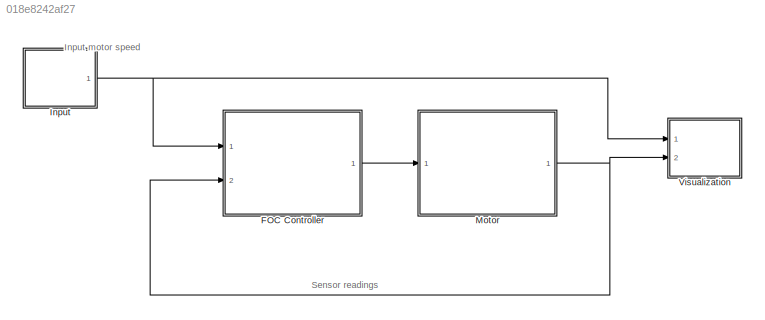
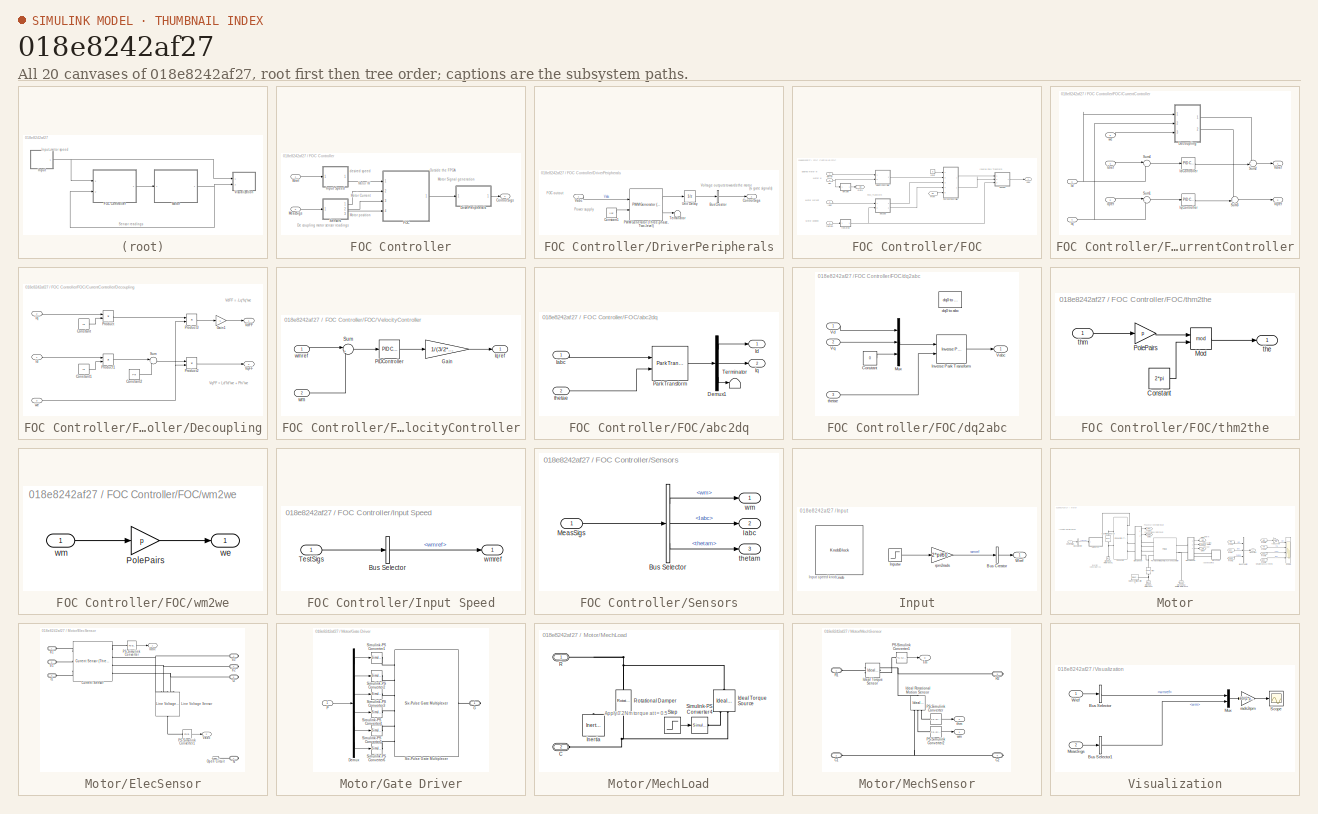
[diagram: thumbnail index - all 20 canvases of the model, root first then tree order]
MODEL slx_018e8242af27
KIND model
CONFIG AbsTol = auto
CONFIG EnableMultiTasking = off
CONFIG FixedStep = auto
CONFIG MaxStep = auto
CONFIG MinStep = auto
CONFIG RelTol = 1e-3
CONFIG SampleTimeConstraint = Unconstrained
CONFIG Solver = ode23t
CONFIG SolverName = ode23t
CONFIG StartTime = 0.0
CONFIG StopTime = 10
BLOCK [SubSystem] FOC Controller
  Ports = [2, 1]
  RequestExecContextInheritance = off
BLOCK [Outport] FOC Controller/ControlSigs
  VectorParamsAs1DForOutWhenUnconnected = off
BLOCK [SubSystem] FOC Controller/DriverPeripherals
  Ports = [1, 1]
  RequestExecContextInheritance = off
BLOCK [BusCreator] FOC Controller/DriverPeripherals/Bus Creator
  DisplayOption = bar
  InheritFromInputs = on
  Inputs = 1
  Ports = [1, 1]
BLOCK [Constant] FOC Controller/DriverPeripherals/Constant1
  Value = Vdc
BLOCK [Outport] FOC Controller/DriverPeripherals/ControlSigs
  VectorParamsAs1DForOutWhenUnconnected = off
BLOCK [Reference] FOC Controller/DriverPeripherals/PWM Generator (Three-phase, Two-level)  REF=eePwmGeneratorTwoLevel/PWM Generator
(Three-phase, Two-level)
  Ports = [2, 2]
  SourceBlock = eePwmGeneratorTwoLevel/PWM Generator\n(Three-phase, Two-level)
  SourceProductBaseCode = PS
  SourceType = PWM Generator (three-phase, two-level)
BLOCK [Terminator] FOC Controller/DriverPeripherals/Terminator
BLOCK [UnitDelay] FOC Controller/DriverPeripherals/Unit Delay
  HasFrameUpgradeWarning = on
  SampleTime = -1
BLOCK [Inport] FOC Controller/DriverPeripherals/Vabc
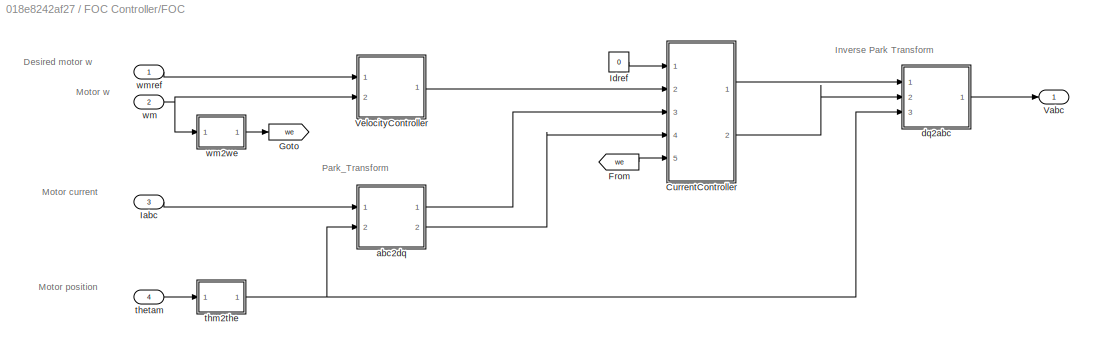
BLOCK [SubSystem] FOC Controller/FOC
  Ports = [4, 1]
  RequestExecContextInheritance = off
BLOCK [SubSystem] FOC Controller/FOC/CurrentController
  Ports = [5, 2]
  RequestExecContextInheritance = off
BLOCK [SubSystem] FOC Controller/FOC/CurrentController/Decoupling
  Ports = [3, 2]
  RequestExecContextInheritance = off
BLOCK [Constant] FOC Controller/FOC/CurrentController/Decoupling/Constant
  Value = Lq
BLOCK [Constant] FOC Controller/FOC/CurrentController/Decoupling/Constant1
  Value = Ld
BLOCK [Constant] FOC Controller/FOC/CurrentController/Decoupling/Constant2
  Value = Phi
BLOCK [Gain] FOC Controller/FOC/CurrentController/Decoupling/Gain1
  Gain = -1
BLOCK [Inport] FOC Controller/FOC/CurrentController/Decoupling/Id
BLOCK [Inport] FOC Controller/FOC/CurrentController/Decoupling/Iq
  Port = 2
BLOCK [Product] FOC Controller/FOC/CurrentController/Decoupling/Product
  Ports = [2, 1]
BLOCK [Product] FOC Controller/FOC/CurrentController/Decoupling/Product1
  Ports = [2, 1]
BLOCK [Product] FOC Controller/FOC/CurrentController/Decoupling/Product2
  Ports = [2, 1]
BLOCK [Product] FOC Controller/FOC/CurrentController/Decoupling/Product3
  Ports = [2, 1]
BLOCK [Sum] FOC Controller/FOC/CurrentController/Decoupling/Sum
  Inputs = |++
  Ports = [2, 1]
BLOCK [Outport] FOC Controller/FOC/CurrentController/Decoupling/VdFF
  VectorParamsAs1DForOutWhenUnconnected = off
BLOCK [Outport] FOC Controller/FOC/CurrentController/Decoupling/VqFF
  Port = 2
  VectorParamsAs1DForOutWhenUnconnected = off
BLOCK [Inport] FOC Controller/FOC/CurrentController/Decoupling/we
  Port = 3
BLOCK [Inport] FOC Controller/FOC/CurrentController/Id
  Port = 3
BLOCK [Reference] FOC Controller/FOC/CurrentController/IdController  REF=simulink/Continuous/PID Controller
  Ports = [1, 1]
  SourceBlock = simulink/Continuous/PID Controller
  SourceProductBaseCode = SL
  SourceType = PID 1dof
BLOCK [Inport] FOC Controller/FOC/CurrentController/Idref
BLOCK [Inport] FOC Controller/FOC/CurrentController/Iq
  Port = 4
BLOCK [Reference] FOC Controller/FOC/CurrentController/IqController  REF=simulink/Continuous/PID Controller
  Ports = [1, 1]
  SourceBlock = simulink/Continuous/PID Controller
  SourceProductBaseCode = SL
  SourceType = PID 1dof
BLOCK [Inport] FOC Controller/FOC/CurrentController/Iqref
  Port = 2
BLOCK [Sum] FOC Controller/FOC/CurrentController/Sum1
  Inputs = |+-
  Ports = [2, 1]
BLOCK [Sum] FOC Controller/FOC/CurrentController/Sum2
  Inputs = ++|
  Ports = [2, 1]
BLOCK [Sum] FOC Controller/FOC/CurrentController/Sum3
  Inputs = ++|
  Ports = [2, 1]
BLOCK [Sum] FOC Controller/FOC/CurrentController/Sum4
  Inputs = |+-
  Ports = [2, 1]
BLOCK [Outport] FOC Controller/FOC/CurrentController/Vdref
  VectorParamsAs1DForOutWhenUnconnected = off
BLOCK [Outport] FOC Controller/FOC/CurrentController/Vqref
  Port = 2
  VectorParamsAs1DForOutWhenUnconnected = off
BLOCK [Inport] FOC Controller/FOC/CurrentController/we
  Port = 5
BLOCK [From] FOC Controller/FOC/From
  GotoTag = we
BLOCK [Goto] FOC Controller/FOC/Goto
  GotoTag = we
BLOCK [Inport] FOC Controller/FOC/Iabc
  Port = 3
BLOCK [Constant] FOC Controller/FOC/Idref
  SampleTime = -1
  Value = 0
BLOCK [Outport] FOC Controller/FOC/Vabc
  VectorParamsAs1DForOutWhenUnconnected = off
BLOCK [SubSystem] FOC Controller/FOC/VelocityController
  Ports = [2, 1]
  RequestExecContextInheritance = off
BLOCK [Gain] FOC Controller/FOC/VelocityController/Gain
  Gain = 1/(3/2*p*Phi)
BLOCK [Outport] FOC Controller/FOC/VelocityController/Iqref
  VectorParamsAs1DForOutWhenUnconnected = off
BLOCK [Reference] FOC Controller/FOC/VelocityController/PIDController  REF=simulink/Continuous/PID Controller
  Ports = [1, 1]
  SourceBlock = simulink/Continuous/PID Controller
  SourceProductBaseCode = SL
  SourceType = PID 1dof
BLOCK [Sum] FOC Controller/FOC/VelocityController/Sum
  Inputs = |+-
  Ports = [2, 1]
BLOCK [Inport] FOC Controller/FOC/VelocityController/wm
  Port = 2
BLOCK [Inport] FOC Controller/FOC/VelocityController/wmref
BLOCK [SubSystem] FOC Controller/FOC/abc2dq
  Ports = [2, 2]
  RequestExecContextInheritance = off
BLOCK [Demux] FOC Controller/FOC/abc2dq/Demux1
  Outputs = 3
  Ports = [1, 3]
BLOCK [Inport] FOC Controller/FOC/abc2dq/Iabc
BLOCK [Outport] FOC Controller/FOC/abc2dq/Id
  VectorParamsAs1DForOutWhenUnconnected = off
BLOCK [Outport] FOC Controller/FOC/abc2dq/Iq
  Port = 2
  VectorParamsAs1DForOutWhenUnconnected = off
BLOCK [Reference] FOC Controller/FOC/abc2dq/Park Transform  REF=eeTransforms/Park Transform
  Ports = [2, 1]
  SourceBlock = eeTransforms/Park Transform
  SourceProductBaseCode = PS
  SourceType = Park Transform
BLOCK [Terminator] FOC Controller/FOC/abc2dq/Terminator
BLOCK [Inport] FOC Controller/FOC/abc2dq/thetae
  Port = 2
BLOCK [SubSystem] FOC Controller/FOC/dq2abc
  Ports = [3, 1]
  RequestExecContextInheritance = off
BLOCK [Constant] FOC Controller/FOC/dq2abc/Constant
  Value = 0
BLOCK [Reference] FOC Controller/FOC/dq2abc/Inverse Park Transform  REF=eeTransforms/Inverse
Park Transform
  Ports = [2, 1]
  SourceBlock = eeTransforms/Inverse\nPark Transform
  SourceProductBaseCode = PS
  SourceType = Inverse Park Transform
BLOCK [Mux] FOC Controller/FOC/dq2abc/Mux
  DisplayOption = bar
  Inputs = 3
  Ports = [3, 1]
BLOCK [Outport] FOC Controller/FOC/dq2abc/Vabc
  VectorParamsAs1DForOutWhenUnconnected = off
BLOCK [Inport] FOC Controller/FOC/dq2abc/Vd
BLOCK [Inport] FOC Controller/FOC/dq2abc/Vq
  Port = 2
BLOCK [Reference] FOC Controller/FOC/dq2abc/dq0 to abc  REF=powerlib_meascontrol/Transformations/dq0 to abc
  Commented = on
  Ports = [2, 1]
  SourceBlock = powerlib_meascontrol/Transformations/dq0 to abc
  SourceProductBaseCode = PS
  SourceType = dq0 to abc Transformation
BLOCK [Inport] FOC Controller/FOC/dq2abc/thetae
  Port = 3
BLOCK [Inport] FOC Controller/FOC/thetam
  Port = 4
BLOCK [SubSystem] FOC Controller/FOC/thm2the
  Ports = [1, 1]
  RequestExecContextInheritance = off
BLOCK [Constant] FOC Controller/FOC/thm2the/Constant
  Value = 2*pi
BLOCK [Math] FOC Controller/FOC/thm2the/Mod
  Operator = mod
  Ports = [2, 1]
  SignedPower = on
BLOCK [Gain] FOC Controller/FOC/thm2the/PolePairs
  Gain = p
BLOCK [Outport] FOC Controller/FOC/thm2the/the
  VectorParamsAs1DForOutWhenUnconnected = off
BLOCK [Inport] FOC Controller/FOC/thm2the/thm
BLOCK [Inport] FOC Controller/FOC/wm
  Port = 2
BLOCK [SubSystem] FOC Controller/FOC/wm2we
  Ports = [1, 1]
  RequestExecContextInheritance = off
BLOCK [Gain] FOC Controller/FOC/wm2we/PolePairs
  Gain = p
BLOCK [Outport] FOC Controller/FOC/wm2we/we
  VectorParamsAs1DForOutWhenUnconnected = off
BLOCK [Inport] FOC Controller/FOC/wm2we/wm
BLOCK [Inport] FOC Controller/FOC/wmref
BLOCK [SubSystem] FOC Controller/Input Speed
  Ports = [1, 1]
  RequestExecContextInheritance = off
BLOCK [BusSelector] FOC Controller/Input Speed/Bus Selector
  OutputSignals = wmref
  Ports = [1, 1]
BLOCK [Inport] FOC Controller/Input Speed/TestSigs
BLOCK [Outport] FOC Controller/Input Speed/wmref
  VectorParamsAs1DForOutWhenUnconnected = off
BLOCK [Inport] FOC Controller/MeasSigs
  Port = 2
BLOCK [SubSystem] FOC Controller/Sensors
  Ports = [1, 3]
  RequestExecContextInheritance = off
BLOCK [BusSelector] FOC Controller/Sensors/Bus Selector
  OutputSignals = wm,Iabc,thetam
  Ports = [1, 3]
BLOCK [Outport] FOC Controller/Sensors/Iabc
  Port = 2
  VectorParamsAs1DForOutWhenUnconnected = off
BLOCK [Inport] FOC Controller/Sensors/MeasSigs
BLOCK [Outport] FOC Controller/Sensors/thetam
  Port = 3
  VectorParamsAs1DForOutWhenUnconnected = off
BLOCK [Outport] FOC Controller/Sensors/wm
  VectorParamsAs1DForOutWhenUnconnected = off
BLOCK [Inport] FOC Controller/Wref
BLOCK [SubSystem] Input
  Ports = [0, 1]
  RequestExecContextInheritance = off
BLOCK [BusCreator] Input/Bus Creator
  DisplayOption = bar
  InheritFromInputs = on
  Inputs = 1
  Ports = [1, 1]
BLOCK [Step] Input/Inputw
  After = 898.9663136800131
  SampleTime = 0
  Time = 0.05
BLOCK [KnobBlock] Input/Knob
  ScaleMax = 2400
  ScaleMin = 100
BLOCK [Outport] Input/Wref
  VectorParamsAs1DForOutWhenUnconnected = off
BLOCK [Gain] Input/rpm2rads
  Gain = 2*pi/60
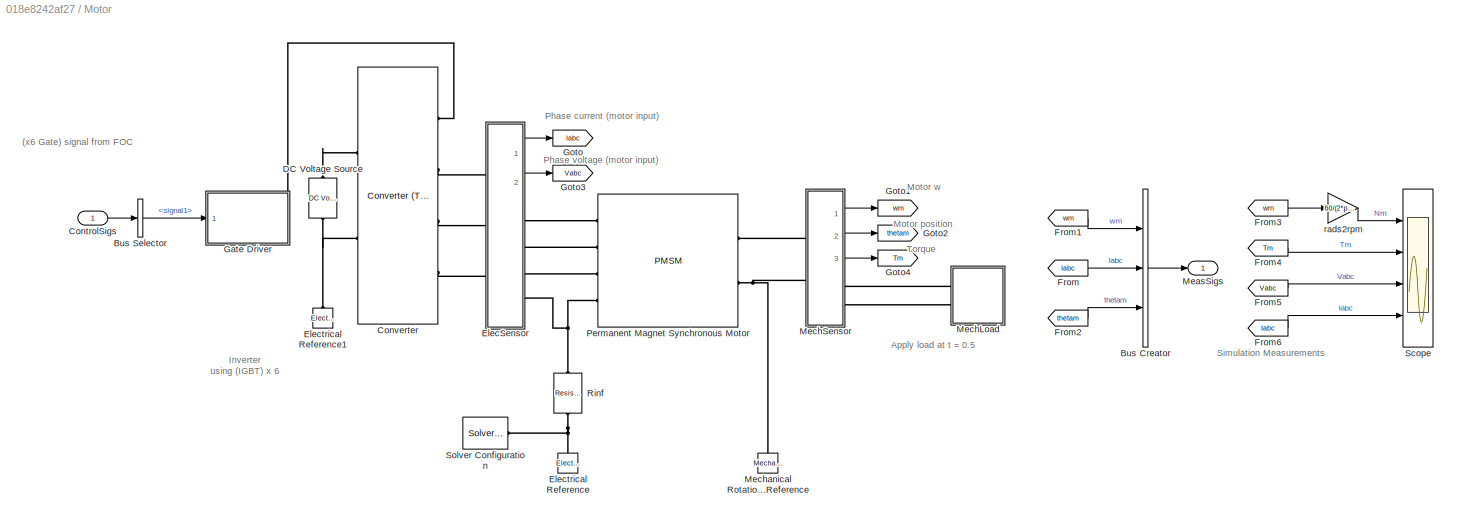
BLOCK [SubSystem] Motor
  Ports = [1, 1]
  RequestExecContextInheritance = off
BLOCK [BusCreator] Motor/Bus Creator
  DisplayOption = bar
  InheritFromInputs = on
  Inputs = 3
  Ports = [3, 1]
BLOCK [BusSelector] Motor/Bus Selector
  OutputSignals = signal1
  Ports = [1, 1]
BLOCK [Inport] Motor/ControlSigs
BLOCK [Reference] Motor/Converter  REF=ee_lib/Semiconductors &
Converters/Converters/Converter
(Three-Phase)
  Ports = [0, 0, 0, 0, 0, 4, 2]
  SourceBlock = ee_lib/Semiconductors &\nConverters/Converters/Converter\n(Three-Phase)
  SourceProductBaseCode = PS
  SourceType = Converter\n(Three-Phase)
BLOCK [Reference] Motor/DC Voltage Source  REF=fl_lib/Electrical/Electrical Sources/DC Voltage Source
  NameLocation = left
  Ports = [0, 0, 0, 0, 0, 1, 1]
  SourceBlock = fl_lib/Electrical/Electrical Sources/DC Voltage Source
  SourceProductBaseCode = SS
  SourceType = DC Voltage Source
BLOCK [SubSystem] Motor/ElecSensor
  Ports = [0, 2, 0, 0, 0, 3, 4]
  RequestExecContextInheritance = off
BLOCK [Reference] Motor/ElecSensor/Current Sensor  REF=ee_lib/Sensors &
Transducers/Current Sensor
(Three-Phase)
  Ports = [0, 0, 0, 0, 0, 3, 4]
  SourceBlock = ee_lib/Sensors &\nTransducers/Current Sensor\n(Three-Phase)
  SourceProductBaseCode = PS
  SourceType = Current Sensor\n(Three-Phase)
BLOCK [Outport] Motor/ElecSensor/Iabc
  VectorParamsAs1DForOutWhenUnconnected = off
BLOCK [Reference] Motor/ElecSensor/Line Voltage Sensor  REF=ee_lib/Sensors &
Transducers/Line Voltage Sensor
(Three-Phase)
  NameLocation = right
  Ports = [0, 0, 0, 0, 0, 3, 1]
  SourceBlock = ee_lib/Sensors &\nTransducers/Line Voltage Sensor\n(Three-Phase)
  SourceProductBaseCode = PS
  SourceType = Line Voltage Sensor\n(Three-Phase)
BLOCK [PMIOPort] Motor/ElecSensor/N
  Port = 7
  Side = Right
BLOCK [Reference] Motor/ElecSensor/Open Circuit  REF=fl_lib/Electrical/Electrical Elements/Open Circuit
  Ports = [0, 0, 0, 0, 0, 1]
  SourceBlock = fl_lib/Electrical/Electrical Elements/Open Circuit
  SourceProductBaseCode = SS
  SourceType = Open Circuit
BLOCK [Reference] Motor/ElecSensor/PS-Simulink Converter  REF=nesl_utility/PS-Simulink
Converter
  Ports = [0, 1, 0, 0, 0, 1]
  SourceBlock = nesl_utility/PS-Simulink\nConverter
  SourceProductBaseCode = SS
  SourceType = PS-Simulink\nConverter
BLOCK [Reference] Motor/ElecSensor/PS-Simulink Converter1  REF=nesl_utility/PS-Simulink
Converter
  Ports = [0, 1, 0, 0, 0, 1]
  SourceBlock = nesl_utility/PS-Simulink\nConverter
  SourceProductBaseCode = SS
  SourceType = PS-Simulink\nConverter
BLOCK [Outport] Motor/ElecSensor/Vabc
  Port = 2
  VectorParamsAs1DForOutWhenUnconnected = off
BLOCK [PMIOPort] Motor/ElecSensor/a1
  Side = Left
BLOCK [PMIOPort] Motor/ElecSensor/a2
  Port = 4
  Side = Right
BLOCK [PMIOPort] Motor/ElecSensor/b1
  Port = 2
  Side = Left
BLOCK [PMIOPort] Motor/ElecSensor/b2
  Port = 5
  Side = Right
BLOCK [PMIOPort] Motor/ElecSensor/c1
  Port = 3
  Side = Left
BLOCK [PMIOPort] Motor/ElecSensor/c2
  Port = 6
  Side = Right
BLOCK [Reference] Motor/Electrical Reference  REF=fl_lib/Electrical/Electrical Elements/Electrical Reference
  NameLocation = right
  Ports = [0, 0, 0, 0, 0, 1]
  SourceBlock = fl_lib/Electrical/Electrical Elements/Electrical Reference
  SourceProductBaseCode = SS
  SourceType = Electrical Reference
BLOCK [Reference] Motor/Electrical Reference1  REF=fl_lib/Electrical/Electrical Elements/Electrical Reference
  NameLocation = right
  Ports = [0, 0, 0, 0, 0, 1]
  SourceBlock = fl_lib/Electrical/Electrical Elements/Electrical Reference
  SourceProductBaseCode = SS
  SourceType = Electrical Reference
BLOCK [From] Motor/From
  GotoTag = Iabc
BLOCK [From] Motor/From1
  GotoTag = wm
BLOCK [From] Motor/From2
  GotoTag = thetam
BLOCK [From] Motor/From3
  GotoTag = wm
BLOCK [From] Motor/From4
  GotoTag = Tm
BLOCK [From] Motor/From5
  GotoTag = Vabc
BLOCK [From] Motor/From6
  GotoTag = Iabc
BLOCK [SubSystem] Motor/Gate Driver
  Ports = [1, 0, 0, 0, 0, 0, 1]
  RequestExecContextInheritance = off
BLOCK [Demux] Motor/Gate Driver/Demux
  Outputs = 6
  Ports = [1, 6]
BLOCK [PMIOPort] Motor/Gate Driver/G
  Side = Right
BLOCK [Inport] Motor/Gate Driver/P
BLOCK [Reference] Motor/Gate Driver/Simulink-PS Converter1  REF=nesl_utility/Simulink-PS
Converter
  Ports = [1, 0, 0, 0, 0, 0, 1]
  SourceBlock = nesl_utility/Simulink-PS\nConverter
  SourceProductBaseCode = SS
  SourceType = Simulink-PS\nConverter
BLOCK [Reference] Motor/Gate Driver/Simulink-PS Converter2  REF=nesl_utility/Simulink-PS
Converter
  Ports = [1, 0, 0, 0, 0, 0, 1]
  SourceBlock = nesl_utility/Simulink-PS\nConverter
  SourceProductBaseCode = SS
  SourceType = Simulink-PS\nConverter
BLOCK [Reference] Motor/Gate Driver/Simulink-PS Converter3  REF=nesl_utility/Simulink-PS
Converter
  Ports = [1, 0, 0, 0, 0, 0, 1]
  SourceBlock = nesl_utility/Simulink-PS\nConverter
  SourceProductBaseCode = SS
  SourceType = Simulink-PS\nConverter
BLOCK [Reference] Motor/Gate Driver/Simulink-PS Converter4  REF=nesl_utility/Simulink-PS
Converter
  Ports = [1, 0, 0, 0, 0, 0, 1]
  SourceBlock = nesl_utility/Simulink-PS\nConverter
  SourceProductBaseCode = SS
  SourceType = Simulink-PS\nConverter
BLOCK [Reference] Motor/Gate Driver/Simulink-PS Converter5  REF=nesl_utility/Simulink-PS
Converter
  Ports = [1, 0, 0, 0, 0, 0, 1]
  SourceBlock = nesl_utility/Simulink-PS\nConverter
  SourceProductBaseCode = SS
  SourceType = Simulink-PS\nConverter
BLOCK [Reference] Motor/Gate Driver/Simulink-PS Converter6  REF=nesl_utility/Simulink-PS
Converter
  Ports = [1, 0, 0, 0, 0, 0, 1]
  SourceBlock = nesl_utility/Simulink-PS\nConverter
  SourceProductBaseCode = SS
  SourceType = Simulink-PS\nConverter
BLOCK [Reference] Motor/Gate Driver/Six-Pulse Gate Multiplexer  REF=ee_lib/Semiconductors &
Converters/Converters/Six-Pulse Gate
Multiplexer
  Ports = [0, 0, 0, 0, 0, 6, 1]
  SourceBlock = ee_lib/Semiconductors &\nConverters/Converters/Six-Pulse Gate\nMultiplexer
  SourceProductBaseCode = PS
  SourceType = Six-Pulse Gate\nMultiplexer
BLOCK [Goto] Motor/Goto
  GotoTag = Iabc
BLOCK [Goto] Motor/Goto1
  GotoTag = wm
BLOCK [Goto] Motor/Goto2
  GotoTag = thetam
BLOCK [Goto] Motor/Goto3
  GotoTag = Vabc
BLOCK [Goto] Motor/Goto4
  GotoTag = Tm
BLOCK [Outport] Motor/MeasSigs
  VectorParamsAs1DForOutWhenUnconnected = off
BLOCK [SubSystem] Motor/MechLoad
  Ports = [0, 0, 0, 0, 0, 2]
  RequestExecContextInheritance = off
BLOCK [PMIOPort] Motor/MechLoad/C
  Port = 2
  Side = Left
BLOCK [Reference] Motor/MechLoad/Ideal Torque Source  REF=fl_lib/Mechanical/Mechanical Sources/Ideal Torque Source
  NameLocation = right
  Ports = [0, 0, 0, 0, 0, 1, 2]
  SourceBlock = fl_lib/Mechanical/Mechanical Sources/Ideal Torque Source
  SourceProductBaseCode = SS
  SourceType = Ideal Torque Source
BLOCK [Reference] Motor/MechLoad/Inertia  REF=fl_lib/Mechanical/Rotational Elements/Inertia
  NameLocation = right
  Ports = [0, 0, 0, 0, 0, 1]
  SourceBlock = fl_lib/Mechanical/Rotational Elements/Inertia
  SourceProductBaseCode = SS
  SourceType = Inertia
BLOCK [PMIOPort] Motor/MechLoad/R
  Side = Left
BLOCK [Reference] Motor/MechLoad/Rotational Damper  REF=fl_lib/Mechanical/Rotational Elements/Rotational Damper
  NameLocation = right
  Ports = [0, 0, 0, 0, 0, 1, 1]
  SourceBlock = fl_lib/Mechanical/Rotational Elements/Rotational Damper
  SourceProductBaseCode = SS
  SourceType = Rotational Damper
BLOCK [Reference] Motor/MechLoad/Simulink-PS Converter4  REF=nesl_utility/Simulink-PS
Converter
  Ports = [1, 0, 0, 0, 0, 0, 1]
  SourceBlock = nesl_utility/Simulink-PS\nConverter
  SourceProductBaseCode = SS
  SourceType = Simulink-PS\nConverter
BLOCK [Step] Motor/MechLoad/Step
  After = -0.2
  SampleTime = 0
  Time = 0.5
BLOCK [SubSystem] Motor/MechSensor
  Ports = [0, 3, 0, 0, 0, 2, 2]
  RequestExecContextInheritance = off
BLOCK [PMIOPort] Motor/MechSensor/C1
  Port = 2
  Side = Left
BLOCK [PMIOPort] Motor/MechSensor/C2
  Port = 4
  Side = Right
BLOCK [Reference] Motor/MechSensor/Ideal Rotational Motion Sensor  REF=fl_lib/Mechanical/Mechanical Sensors/Ideal Rotational
Motion Sensor
  NameLocation = right
  Ports = [0, 0, 0, 0, 0, 1, 3]
  SourceBlock = fl_lib/Mechanical/Mechanical Sensors/Ideal Rotational\nMotion Sensor
  SourceProductBaseCode = SS
  SourceType = Ideal Rotational\nMotion Sensor
BLOCK [Reference] Motor/MechSensor/Ideal Torque Sensor  REF=fl_lib/Mechanical/Mechanical Sensors/Ideal Torque Sensor
  Ports = [0, 0, 0, 0, 0, 1, 2]
  SourceBlock = fl_lib/Mechanical/Mechanical Sensors/Ideal Torque Sensor
  SourceProductBaseCode = SS
  SourceType = Ideal Torque Sensor
BLOCK [Reference] Motor/MechSensor/PS-Simulink Converter  REF=nesl_utility/PS-Simulink
Converter
  Ports = [0, 1, 0, 0, 0, 1]
  SourceBlock = nesl_utility/PS-Simulink\nConverter
  SourceProductBaseCode = SS
  SourceType = PS-Simulink\nConverter
BLOCK [Reference] Motor/MechSensor/PS-Simulink Converter1  REF=nesl_utility/PS-Simulink
Converter
  Ports = [0, 1, 0, 0, 0, 1]
  SourceBlock = nesl_utility/PS-Simulink\nConverter
  SourceProductBaseCode = SS
  SourceType = PS-Simulink\nConverter
BLOCK [Reference] Motor/MechSensor/PS-Simulink Converter2  REF=nesl_utility/PS-Simulink
Converter
  Ports = [0, 1, 0, 0, 0, 1]
  SourceBlock = nesl_utility/PS-Simulink\nConverter
  SourceProductBaseCode = SS
  SourceType = PS-Simulink\nConverter
BLOCK [PMIOPort] Motor/MechSensor/R1
  Side = Left
BLOCK [PMIOPort] Motor/MechSensor/R2
  Port = 3
  Side = Right
BLOCK [Outport] Motor/MechSensor/Tm
  Port = 3
  VectorParamsAs1DForOutWhenUnconnected = off
BLOCK [Outport] Motor/MechSensor/thm
  Port = 2
  VectorParamsAs1DForOutWhenUnconnected = off
BLOCK [Outport] Motor/MechSensor/wm
  VectorParamsAs1DForOutWhenUnconnected = off
BLOCK [Reference] Motor/Mechanical Rotational Reference  REF=fl_lib/Mechanical/Rotational Elements/Mechanical
Rotational Reference
  NameLocation = right
  Ports = [0, 0, 0, 0, 0, 1]
  SourceBlock = fl_lib/Mechanical/Rotational Elements/Mechanical\nRotational Reference
  SourceProductBaseCode = SS
  SourceType = Mechanical\nRotational Reference
BLOCK [Reference] Motor/Permanent Magnet Synchronous Motor  REF=ee_lib/Electromechanical/Permanent Magnet/PMSM
  Ports = [0, 0, 0, 0, 0, 4, 2]
  SourceBlock = ee_lib/Electromechanical/Permanent Magnet/PMSM
  SourceProductBaseCode = PS
  SourceType = PMSM
BLOCK [Reference] Motor/Rinf  REF=fl_lib/Electrical/Electrical Elements/Resistor
  NameLocation = right
  Ports = [0, 0, 0, 0, 0, 1, 1]
  SourceBlock = fl_lib/Electrical/Electrical Elements/Resistor
  SourceProductBaseCode = SS
  SourceType = Resistor
BLOCK [Scope] Motor/Scope
  Floating = off
  NumInputPorts = 4
  Ports = [4]
  ScopeSpecificationString = Simulink.scopes.TimeScopeBlockCfg('CurrentConfiguration', extmgr.ConfigurationSet(extmgr.Configuration('Core','General UI',true),extmgr.Configuration('Core','Source UI',true),extmgr.Configuration('Sources','WiredSimulink',true,'DataLoggingVariableName','ScopeData1'),extmgr.Configuration('Visuals','Time Domain',true,'SerializedDisplays',{struct('MinYLimReal','-144.30476','MaxYLimReal','1298.74285',...<+4375ch>
BLOCK [Reference] Motor/Solver Configuration  REF=nesl_utility/Solver
Configuration
  Ports = [0, 0, 0, 0, 0, 0, 1]
  SourceBlock = nesl_utility/Solver\nConfiguration
  SourceProductBaseCode = SS
  SourceType = Solver\nConfiguration
BLOCK [Gain] Motor/rads2rpm
  Gain = 60/(2*pi)
BLOCK [SubSystem] Visualization
  Ports = [2]
  RequestExecContextInheritance = off
BLOCK [BusSelector] Visualization/Bus Selector
  OutputSignals = wmref
  Ports = [1, 1]
BLOCK [BusSelector] Visualization/Bus Selector1
  OutputSignals = wm
  Ports = [1, 1]
BLOCK [Inport] Visualization/MeasSigs
  Port = 2
BLOCK [Mux] Visualization/Mux
  DisplayOption = bar
  Inputs = 2
  Ports = [2, 1]
BLOCK [Scope] Visualization/Scope
  Floating = off
  NumInputPorts = 1
  Ports = [1]
  ScopeSpecificationString = Simulink.scopes.TimeScopeBlockCfg('CurrentConfiguration', extmgr.ConfigurationSet(extmgr.Configuration('Core','General UI',true),extmgr.Configuration('Core','Source UI',true),extmgr.Configuration('Sources','WiredSimulink',true),extmgr.Configuration('Visuals','Time Domain',true,'SerializedDisplays',{struct('MinYLimReal','-292.35536','MaxYLimReal','2631.19822','YLabelReal','','MinYLimMag',' 0.00000'...<+1678ch>
BLOCK [Inport] Visualization/Wref
BLOCK [Gain] Visualization/rads2rpm
  Gain = 60/(2*pi)
ANNOTATION (root): Input motor speed
ANNOTATION (root): Sensor readings
ANNOTATION FOC Controller: Motor Current
ANNOTATION FOC Controller: De coupling motor sensor readings
ANNOTATION FOC Controller: Motor Signal generation
ANNOTATION FOC Controller: Motor W
ANNOTATION FOC Controller: Motor position
ANNOTATION FOC Controller: Outside the FPGA
ANNOTATION FOC Controller: desired speed
ANNOTATION FOC Controller/DriverPeripherals: (6 gate signals)
ANNOTATION FOC Controller/DriverPeripherals: FOC outout
ANNOTATION FOC Controller/DriverPeripherals: Power supply
ANNOTATION FOC Controller/DriverPeripherals: Voltage outputs towards the motor
ANNOTATION FOC Controller/FOC: Desired motor w
ANNOTATION FOC Controller/FOC: Inverse Park Transform
ANNOTATION FOC Controller/FOC: Motor current
ANNOTATION FOC Controller/FOC: Motor position
ANNOTATION FOC Controller/FOC: Motor w
ANNOTATION FOC Controller/FOC: Park_Transform
ANNOTATION FOC Controller/FOC/CurrentController/Decoupling: VdFF = -Lq*Iq*we
ANNOTATION FOC Controller/FOC/CurrentController/Decoupling: VqFF = Ld*Id*we + Phi*we
ANNOTATION Input: Input speed knob
ANNOTATION Motor: (x6 Gate) signal from FOC
ANNOTATION Motor: Apply load at t = 0.5
ANNOTATION Motor: Inverter using (IGBT) x 6
ANNOTATION Motor: Motor position
ANNOTATION Motor: Motor w
ANNOTATION Motor: Phase current (motor input)
ANNOTATION Motor: Phase voltage (motor input)
ANNOTATION Motor: Simulation Measurements
ANNOTATION Motor: Torque
ANNOTATION Motor/MechLoad: Apply 0.2Nm torque at t = 0.5
LINE FOC Controller/DriverPeripherals/Bus Creator:1 -> FOC Controller/DriverPeripherals/ControlSigs:1
LINE FOC Controller/DriverPeripherals/Constant1:1 -> FOC Controller/DriverPeripherals/PWM Generator (Three-phase, Two-level):2
LINE FOC Controller/DriverPeripherals/PWM Generator (Three-phase, Two-level):1 -> FOC Controller/DriverPeripherals/Unit Delay:1
LINE FOC Controller/DriverPeripherals/PWM Generator (Three-phase, Two-level):2 -> FOC Controller/DriverPeripherals/Terminator:1
LINE FOC Controller/DriverPeripherals/Unit Delay:1 -> FOC Controller/DriverPeripherals/Bus Creator:1
LINE FOC Controller/DriverPeripherals/Vabc:1 -> FOC Controller/DriverPeripherals/PWM Generator (Three-phase, Two-level):1
LINE FOC Controller/DriverPeripherals:1 -> FOC Controller/ControlSigs:1
LINE FOC Controller/FOC/CurrentController/Decoupling/Constant1:1 -> FOC Controller/FOC/CurrentController/Decoupling/Product1:2
LINE FOC Controller/FOC/CurrentController/Decoupling/Constant2:1 -> FOC Controller/FOC/CurrentController/Decoupling/Sum:2
LINE FOC Controller/FOC/CurrentController/Decoupling/Constant:1 -> FOC Controller/FOC/CurrentController/Decoupling/Product:2
LINE FOC Controller/FOC/CurrentController/Decoupling/Gain1:1 -> FOC Controller/FOC/CurrentController/Decoupling/VdFF:1
LINE FOC Controller/FOC/CurrentController/Decoupling/Id:1 -> FOC Controller/FOC/CurrentController/Decoupling/Product1:1
LINE FOC Controller/FOC/CurrentController/Decoupling/Iq:1 -> FOC Controller/FOC/CurrentController/Decoupling/Product:1
LINE FOC Controller/FOC/CurrentController/Decoupling/Product1:1 -> FOC Controller/FOC/CurrentController/Decoupling/Sum:1
LINE FOC Controller/FOC/CurrentController/Decoupling/Product2:1 -> FOC Controller/FOC/CurrentController/Decoupling/VqFF:1
LINE FOC Controller/FOC/CurrentController/Decoupling/Product3:1 -> FOC Controller/FOC/CurrentController/Decoupling/Gain1:1
LINE FOC Controller/FOC/CurrentController/Decoupling/Product:1 -> FOC Controller/FOC/CurrentController/Decoupling/Product3:1
LINE FOC Controller/FOC/CurrentController/Decoupling/Sum:1 -> FOC Controller/FOC/CurrentController/Decoupling/Product2:1
NET FOC Controller/FOC/CurrentController/Decoupling/we:1 -> FOC Controller/FOC/CurrentController/Decoupling/Product2:2, FOC Controller/FOC/CurrentController/Decoupling/Product3:2
LINE FOC Controller/FOC/CurrentController/Decoupling:1 -> FOC Controller/FOC/CurrentController/Sum2:1
LINE FOC Controller/FOC/CurrentController/Decoupling:2 -> FOC Controller/FOC/CurrentController/Sum3:1
NET FOC Controller/FOC/CurrentController/Id:1 -> FOC Controller/FOC/CurrentController/Decoupling:1, FOC Controller/FOC/CurrentController/Sum4:2
LINE FOC Controller/FOC/CurrentController/IdController:1 -> FOC Controller/FOC/CurrentController/Sum2:2
LINE FOC Controller/FOC/CurrentController/Idref:1 -> FOC Controller/FOC/CurrentController/Sum4:1
NET FOC Controller/FOC/CurrentController/Iq:1 -> FOC Controller/FOC/CurrentController/Decoupling:2, FOC Controller/FOC/CurrentController/Sum1:2
LINE FOC Controller/FOC/CurrentController/IqController:1 -> FOC Controller/FOC/CurrentController/Sum3:2
LINE FOC Controller/FOC/CurrentController/Iqref:1 -> FOC Controller/FOC/CurrentController/Sum1:1
LINE FOC Controller/FOC/CurrentController/Sum1:1 -> FOC Controller/FOC/CurrentController/IqController:1
LINE FOC Controller/FOC/CurrentController/Sum2:1 -> FOC Controller/FOC/CurrentController/Vdref:1
LINE FOC Controller/FOC/CurrentController/Sum3:1 -> FOC Controller/FOC/CurrentController/Vqref:1
LINE FOC Controller/FOC/CurrentController/Sum4:1 -> FOC Controller/FOC/CurrentController/IdController:1
LINE FOC Controller/FOC/CurrentController/we:1 -> FOC Controller/FOC/CurrentController/Decoupling:3
LINE FOC Controller/FOC/CurrentController:1 -> FOC Controller/FOC/dq2abc:1
LINE FOC Controller/FOC/CurrentController:2 -> FOC Controller/FOC/dq2abc:2
LINE FOC Controller/FOC/From:1 -> FOC Controller/FOC/CurrentController:5
LINE FOC Controller/FOC/Iabc:1 -> FOC Controller/FOC/abc2dq:1
LINE FOC Controller/FOC/Idref:1 -> FOC Controller/FOC/CurrentController:1
LINE FOC Controller/FOC/VelocityController/Gain:1 -> FOC Controller/FOC/VelocityController/Iqref:1
LINE FOC Controller/FOC/VelocityController/PIDController:1 -> FOC Controller/FOC/VelocityController/Gain:1
LINE FOC Controller/FOC/VelocityController/Sum:1 -> FOC Controller/FOC/VelocityController/PIDController:1
LINE FOC Controller/FOC/VelocityController/wm:1 -> FOC Controller/FOC/VelocityController/Sum:2
LINE FOC Controller/FOC/VelocityController/wmref:1 -> FOC Controller/FOC/VelocityController/Sum:1
LINE FOC Controller/FOC/VelocityController:1 -> FOC Controller/FOC/CurrentController:2
LINE FOC Controller/FOC/abc2dq/Demux1:1 -> FOC Controller/FOC/abc2dq/Id:1
LINE FOC Controller/FOC/abc2dq/Demux1:2 -> FOC Controller/FOC/abc2dq/Iq:1
LINE FOC Controller/FOC/abc2dq/Demux1:3 -> FOC Controller/FOC/abc2dq/Terminator:1
LINE FOC Controller/FOC/abc2dq/Iabc:1 -> FOC Controller/FOC/abc2dq/Park Transform:1
LINE FOC Controller/FOC/abc2dq/Park Transform:1 -> FOC Controller/FOC/abc2dq/Demux1:1
LINE FOC Controller/FOC/abc2dq/thetae:1 -> FOC Controller/FOC/abc2dq/Park Transform:2
LINE FOC Controller/FOC/abc2dq:1 -> FOC Controller/FOC/CurrentController:3
LINE FOC Controller/FOC/abc2dq:2 -> FOC Controller/FOC/CurrentController:4
LINE FOC Controller/FOC/dq2abc/Constant:1 -> FOC Controller/FOC/dq2abc/Mux:3
LINE FOC Controller/FOC/dq2abc/Inverse Park Transform:1 -> FOC Controller/FOC/dq2abc/Vabc:1
LINE FOC Controller/FOC/dq2abc/Mux:1 -> FOC Controller/FOC/dq2abc/Inverse Park Transform:1
LINE FOC Controller/FOC/dq2abc/Vd:1 -> FOC Controller/FOC/dq2abc/Mux:1
LINE FOC Controller/FOC/dq2abc/Vq:1 -> FOC Controller/FOC/dq2abc/Mux:2
LINE FOC Controller/FOC/dq2abc/thetae:1 -> FOC Controller/FOC/dq2abc/Inverse Park Transform:2
LINE FOC Controller/FOC/dq2abc:1 -> FOC Controller/FOC/Vabc:1
LINE FOC Controller/FOC/thetam:1 -> FOC Controller/FOC/thm2the:1
LINE FOC Controller/FOC/thm2the/Constant:1 -> FOC Controller/FOC/thm2the/Mod:2
LINE FOC Controller/FOC/thm2the/Mod:1 -> FOC Controller/FOC/thm2the/the:1
LINE FOC Controller/FOC/thm2the/PolePairs:1 -> FOC Controller/FOC/thm2the/Mod:1
LINE FOC Controller/FOC/thm2the/thm:1 -> FOC Controller/FOC/thm2the/PolePairs:1
NET FOC Controller/FOC/thm2the:1 -> FOC Controller/FOC/abc2dq:2, FOC Controller/FOC/dq2abc:3
LINE FOC Controller/FOC/wm2we/PolePairs:1 -> FOC Controller/FOC/wm2we/we:1
LINE FOC Controller/FOC/wm2we/wm:1 -> FOC Controller/FOC/wm2we/PolePairs:1
LINE FOC Controller/FOC/wm2we:1 -> FOC Controller/FOC/Goto:1
NET FOC Controller/FOC/wm:1 -> FOC Controller/FOC/VelocityController:2, FOC Controller/FOC/wm2we:1
LINE FOC Controller/FOC/wmref:1 -> FOC Controller/FOC/VelocityController:1
LINE FOC Controller/FOC:1 -> FOC Controller/DriverPeripherals:1
LINE FOC Controller/Input Speed/Bus Selector:1 -> FOC Controller/Input Speed/wmref:1
LINE FOC Controller/Input Speed/TestSigs:1 -> FOC Controller/Input Speed/Bus Selector:1
LINE FOC Controller/Input Speed:1 -> FOC Controller/FOC:1
LINE FOC Controller/MeasSigs:1 -> FOC Controller/Sensors:1
LINE FOC Controller/Sensors/Bus Selector:1 -> FOC Controller/Sensors/wm:1
LINE FOC Controller/Sensors/Bus Selector:2 -> FOC Controller/Sensors/Iabc:1
LINE FOC Controller/Sensors/Bus Selector:3 -> FOC Controller/Sensors/thetam:1
LINE FOC Controller/Sensors/MeasSigs:1 -> FOC Controller/Sensors/Bus Selector:1
LINE FOC Controller/Sensors:1 -> FOC Controller/FOC:2
LINE FOC Controller/Sensors:2 -> FOC Controller/FOC:3
LINE FOC Controller/Sensors:3 -> FOC Controller/FOC:4
LINE FOC Controller/Wref:1 -> FOC Controller/Input Speed:1
LINE FOC Controller:1 -> Motor:1
LINE Input/Bus Creator:1 -> Input/Wref:1
LINE Input/Inputw:1 -> Input/rpm2rads:1
LINE Input/rpm2rads:1 -> Input/Bus Creator:1
NET Input:1 -> FOC Controller:1, Visualization:1
LINE Motor/Bus Creator:1 -> Motor/MeasSigs:1
LINE Motor/Bus Selector:1 -> Motor/Gate Driver:1
LINE Motor/ControlSigs:1 -> Motor/Bus Selector:1
LINE Motor/ElecSensor/PS-Simulink Converter1:1 -> Motor/ElecSensor/Vabc:1
LINE Motor/ElecSensor/PS-Simulink Converter:1 -> Motor/ElecSensor/Iabc:1
LINE Motor/ElecSensor:1 -> Motor/Goto:1
LINE Motor/ElecSensor:2 -> Motor/Goto3:1
LINE Motor/From1:1 -> Motor/Bus Creator:1
LINE Motor/From2:1 -> Motor/Bus Creator:3
LINE Motor/From3:1 -> Motor/rads2rpm:1
LINE Motor/From4:1 -> Motor/Scope:2
LINE Motor/From5:1 -> Motor/Scope:3
LINE Motor/From6:1 -> Motor/Scope:4
LINE Motor/From:1 -> Motor/Bus Creator:2
LINE Motor/Gate Driver/Demux:1 -> Motor/Gate Driver/Simulink-PS Converter1:1
LINE Motor/Gate Driver/Demux:2 -> Motor/Gate Driver/Simulink-PS Converter2:1
LINE Motor/Gate Driver/Demux:3 -> Motor/Gate Driver/Simulink-PS Converter3:1
LINE Motor/Gate Driver/Demux:4 -> Motor/Gate Driver/Simulink-PS Converter4:1
LINE Motor/Gate Driver/Demux:5 -> Motor/Gate Driver/Simulink-PS Converter5:1
LINE Motor/Gate Driver/Demux:6 -> Motor/Gate Driver/Simulink-PS Converter6:1
LINE Motor/Gate Driver/P:1 -> Motor/Gate Driver/Demux:1
LINE Motor/MechLoad/Step:1 -> Motor/MechLoad/Simulink-PS Converter4:1
LINE Motor/MechSensor/PS-Simulink Converter1:1 -> Motor/MechSensor/Tm:1
LINE Motor/MechSensor/PS-Simulink Converter2:1 -> Motor/MechSensor/wm:1
LINE Motor/MechSensor/PS-Simulink Converter:1 -> Motor/MechSensor/thm:1
LINE Motor/MechSensor:1 -> Motor/Goto1:1
LINE Motor/MechSensor:2 -> Motor/Goto2:1
LINE Motor/MechSensor:3 -> Motor/Goto4:1
LINE Motor/rads2rpm:1 -> Motor/Scope:1
NET Motor:1 -> FOC Controller:2, Visualization:2
LINE Visualization/Bus Selector1:1 -> Visualization/Mux:2
LINE Visualization/Bus Selector:1 -> Visualization/Mux:1
LINE Visualization/MeasSigs:1 -> Visualization/Bus Selector1:1
LINE Visualization/Mux:1 -> Visualization/rads2rpm:1
LINE Visualization/Wref:1 -> Visualization/Bus Selector:1
LINE Visualization/rads2rpm:1 -> Visualization/Scope:1
PLINE Motor/Converter:LConn1 -- Motor/Gate Driver:RConn1
PLINE Motor/Converter:LConn2 -- Motor/ElecSensor:LConn1
PLINE Motor/Converter:LConn3 -- Motor/ElecSensor:LConn2
PLINE Motor/Converter:LConn4 -- Motor/ElecSensor:LConn3
PLINE Motor/Converter:RConn1 -- Motor/DC Voltage Source:LConn1
PNET net1: Motor/Converter:RConn2 -- Motor/DC Voltage Source:RConn1 -- Motor/Electrical Reference1:LConn1
PLINE Motor/ElecSensor/Current Sensor:LConn1 -- Motor/ElecSensor/a1:RConn1
PLINE Motor/ElecSensor/Current Sensor:LConn2 -- Motor/ElecSensor/b1:RConn1
PLINE Motor/ElecSensor/Current Sensor:LConn3 -- Motor/ElecSensor/c1:RConn1
PLINE Motor/ElecSensor/Current Sensor:RConn1 -- Motor/ElecSensor/PS-Simulink Converter:LConn1
PNET net2: Motor/ElecSensor/Current Sensor:RConn2 -- Motor/ElecSensor/Line Voltage Sensor:LConn1 -- Motor/ElecSensor/a2:RConn1
PNET net3: Motor/ElecSensor/Current Sensor:RConn3 -- Motor/ElecSensor/Line Voltage Sensor:LConn2 -- Motor/ElecSensor/b2:RConn1
PNET net4: Motor/ElecSensor/Current Sensor:RConn4 -- Motor/ElecSensor/Line Voltage Sensor:LConn3 -- Motor/ElecSensor/c2:RConn1
PLINE Motor/ElecSensor/Line Voltage Sensor:RConn1 -- Motor/ElecSensor/PS-Simulink Converter1:LConn1
PLINE Motor/ElecSensor/N:RConn1 -- Motor/ElecSensor/Open Circuit:LConn1
PLINE Motor/ElecSensor:RConn1 -- Motor/Permanent Magnet Synchronous Motor:LConn1
PLINE Motor/ElecSensor:RConn2 -- Motor/Permanent Magnet Synchronous Motor:LConn2
PLINE Motor/ElecSensor:RConn3 -- Motor/Permanent Magnet Synchronous Motor:LConn3
PNET net5: Motor/ElecSensor:RConn4 -- Motor/Permanent Magnet Synchronous Motor:LConn4 -- Motor/Rinf:LConn1
PNET net6: Motor/Electrical Reference:LConn1 -- Motor/Rinf:RConn1 -- Motor/Solver Configuration:RConn1
PLINE Motor/Gate Driver/G:RConn1 -- Motor/Gate Driver/Six-Pulse Gate Multiplexer:RConn1
PLINE Motor/Gate Driver/Simulink-PS Converter1:RConn1 -- Motor/Gate Driver/Six-Pulse Gate Multiplexer:LConn1
PLINE Motor/Gate Driver/Simulink-PS Converter2:RConn1 -- Motor/Gate Driver/Six-Pulse Gate Multiplexer:LConn2
PLINE Motor/Gate Driver/Simulink-PS Converter3:RConn1 -- Motor/Gate Driver/Six-Pulse Gate Multiplexer:LConn3
PLINE Motor/Gate Driver/Simulink-PS Converter4:RConn1 -- Motor/Gate Driver/Six-Pulse Gate Multiplexer:LConn4
PLINE Motor/Gate Driver/Simulink-PS Converter5:RConn1 -- Motor/Gate Driver/Six-Pulse Gate Multiplexer:LConn5
PLINE Motor/Gate Driver/Simulink-PS Converter6:RConn1 -- Motor/Gate Driver/Six-Pulse Gate Multiplexer:LConn6
PNET net7: Motor/MechLoad/C:RConn1 -- Motor/MechLoad/Ideal Torque Source:RConn2 -- Motor/MechLoad/Rotational Damper:RConn1
PNET net8: Motor/MechLoad/Ideal Torque Source:LConn1 -- Motor/MechLoad/Inertia:LConn1 -- Motor/MechLoad/R:RConn1 -- Motor/MechLoad/Rotational Damper:LConn1
PLINE Motor/MechLoad/Ideal Torque Source:RConn1 -- Motor/MechLoad/Simulink-PS Converter4:RConn1
PLINE Motor/MechLoad:LConn1 -- Motor/MechSensor:RConn1
PLINE Motor/MechLoad:LConn2 -- Motor/MechSensor:RConn2
PNET net9: Motor/MechSensor/C1:RConn1 -- Motor/MechSensor/C2:RConn1 -- Motor/MechSensor/Ideal Rotational Motion Sensor:RConn1
PNET net10: Motor/MechSensor/Ideal Rotational Motion Sensor:LConn1 -- Motor/MechSensor/Ideal Torque Sensor:RConn1 -- Motor/MechSensor/R2:RConn1
PLINE Motor/MechSensor/Ideal Rotational Motion Sensor:RConn2 -- Motor/MechSensor/PS-Simulink Converter2:LConn1
PLINE Motor/MechSensor/Ideal Rotational Motion Sensor:RConn3 -- Motor/MechSensor/PS-Simulink Converter:LConn1
PLINE Motor/MechSensor/Ideal Torque Sensor:LConn1 -- Motor/MechSensor/R1:RConn1
PLINE Motor/MechSensor/Ideal Torque Sensor:RConn2 -- Motor/MechSensor/PS-Simulink Converter1:LConn1
PLINE Motor/MechSensor:LConn1 -- Motor/Permanent Magnet Synchronous Motor:RConn1
PNET net11: Motor/MechSensor:LConn2 -- Motor/Mechanical Rotational Reference:LConn1 -- Motor/Permanent Magnet Synchronous Motor:RConn2
note: NET lines group one-source signal fan-out (src -> all destinations, sorted); 1:1 wires keep LINE; PNET lines group multi-terminal physical nets as a canonical sorted terminal list (undirected conserving connections); 2-terminal nets keep the pairwise PLINE form
